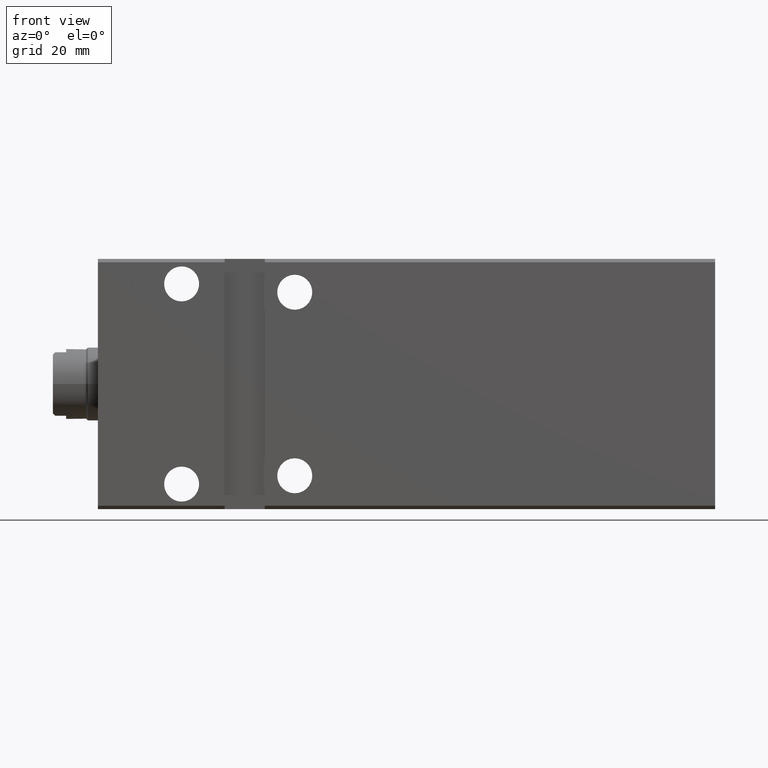
[diagram: clean part render]
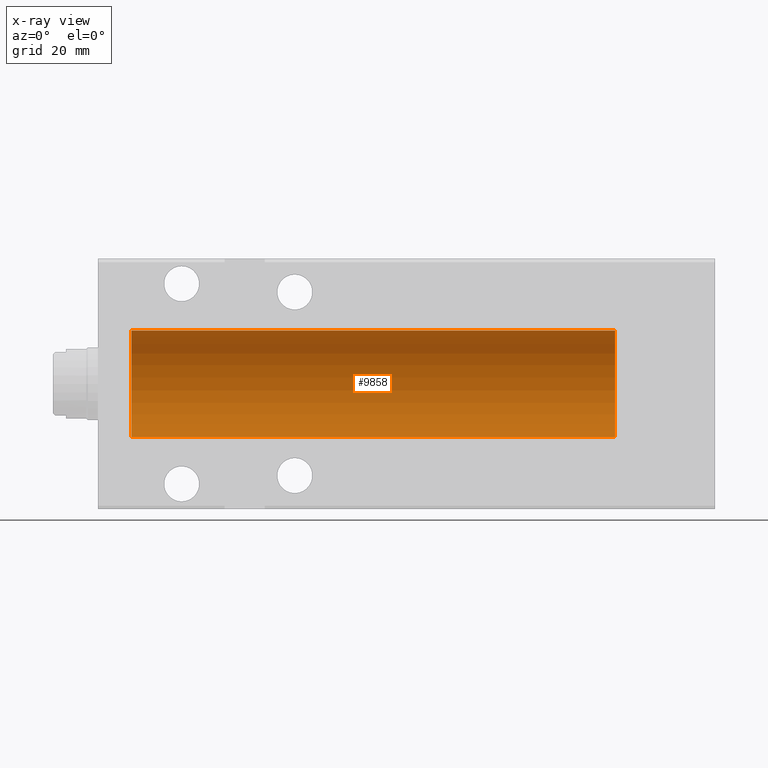
[diagram: x-ray — body ghosted, one internal face saturated and labeled with its STEP entity id]
A machine part, front view, then the same camera in x-ray: the body is ghosted and one INTERNAL B-rep face — a face not visible from any outside direction — is saturated and labeled: STEP entity #9858.
In plain terms, the highlighted cylindrical surface (partial cylindrical patch) has radius 16 mm, axis along (-1, -0, -0).
Its self-contained STEP definition (entity closure, byte-faithful):
#55 = CARTESIAN_POINT ( 'NONE',  ( 155.0000000000000000, 0.000000000000000000, 16.00000000000000000 ) ) ;
#685 = CARTESIAN_POINT ( 'NONE',  ( 155.0000000000000000, 1.959434878635765131E-15, -16.00000000000000000 ) ) ;
#870 = EDGE_LOOP ( 'NONE', ( #22957, #32368, #31303, #26472, #36669, #36803, #38138, #18195 ) ) ;
#1593 = VECTOR ( 'NONE', #3880, 1000.000000000000000 ) ;
#2568 = VECTOR ( 'NONE', #8310, 1000.000000000000000 ) ;
#3115 = DIRECTION ( 'NONE',  ( 0.000000000000000000, 0.000000000000000000, 1.000000000000000000 ) ) ;
#3556 = CARTESIAN_POINT ( 'NONE',  ( 26.57910603363460922, 1.786057109949259036, -15.89999999999998970 ) ) ;
#3660 = CARTESIAN_POINT ( 'NONE',  ( 19.03558494715525029, 0.6159808737045033844, -15.99099227927342959 ) ) ;
#3880 = DIRECTION ( 'NONE',  ( -1.000000000000000000, -0.000000000000000000, -0.000000000000000000 ) ) ;
#4363 = EDGE_CURVE ( 'NONE', #28526, #24926, #25852, .T. ) ;
#5281 = CARTESIAN_POINT ( 'NONE',  ( 155.0000000000000000, 0.000000000000000000, 0.000000000000000000 ) ) ;
#5842 = VECTOR ( 'NONE', #22069, 1000.000000000000000 ) ;
#6087 = EDGE_CURVE ( 'NONE', #14944, #33751, #12883, .T. ) ;
#6107 = EDGE_CURVE ( 'NONE', #8975, #37176, #11834, .T. ) ;
#6669 = DIRECTION ( 'NONE',  ( -1.000000000000000000, 0.000000000000000000, 0.000000000000000000 ) ) ;
#8310 = DIRECTION ( 'NONE',  ( -1.000000000000000000, -0.000000000000000000, -0.000000000000000000 ) ) ;
#8474 = DIRECTION ( 'NONE',  ( -1.000000000000000000, -0.000000000000000000, -0.000000000000000000 ) ) ;
#8975 = VERTEX_POINT ( 'NONE', #18488 ) ;
#9078 = CARTESIAN_POINT ( 'NONE',  ( 10.00000000000000000, 0.000000000000000000, 16.00000000000000000 ) ) ;
#9174 = CARTESIAN_POINT ( 'NONE',  ( 26.96356619788477360, 0.6204082509210441243, -15.99078302721733102 ) ) ;
#9570 = CARTESIAN_POINT ( 'NONE',  ( 26.57910603363460922, 1.786057109949259036, -15.89999999999998970 ) ) ;
#9858 = ADVANCED_FACE ( 'NONE', ( #35836 ), #26471, .F. ) ;
#10067 = CARTESIAN_POINT ( 'NONE',  ( 155.0000000000000000, 0.000000000000000000, 0.000000000000000000 ) ) ;
#10235 = CARTESIAN_POINT ( 'NONE',  ( 10.00000000000000000, 0.000000000000000000, 0.000000000000000000 ) ) ;
#10631 = CARTESIAN_POINT ( 'NONE',  ( 19.17775111251208386, 1.219193417833760451, -15.95634149554536485 ) ) ;
#11507 = CARTESIAN_POINT ( 'NONE',  ( 19.42089396636538723, 1.786057109949259036, -15.89999999999998970 ) ) ;
#11834 = CIRCLE ( 'NONE', #15018, 16.00000000000000000 ) ;
#11902 = CARTESIAN_POINT ( 'NONE',  ( 155.0000000000000000, 1.959434878635765131E-15, -16.00000000000000000 ) ) ;
#11934 = EDGE_CURVE ( 'NONE', #14944, #24926, #27130, .T. ) ;
#12883 = LINE ( 'NONE', #685, #1593 ) ;
#13805 = VERTEX_POINT ( 'NONE', #9078 ) ;
#14191 = CARTESIAN_POINT ( 'NONE',  ( 27.00000000000000000, 1.959432167375458166E-15, -16.00000000000000000 ) ) ;
#14944 = VERTEX_POINT ( 'NONE', #30587 ) ;
#15018 = AXIS2_PLACEMENT_3D ( 'NONE', #10067, #22260, #3115 ) ;
#15365 = CARTESIAN_POINT ( 'NONE',  ( 26.71770615202116161, 1.508314300261687002, -15.93119902641381991 ) ) ;
#16526 = B_SPLINE_CURVE_WITH_KNOTS ( 'NONE', 3,
 ( #9570, #15365, #24377, #9174, #33756, #18561 ),
 .UNSPECIFIED., .F., .F.,
 ( 4, 2, 4 ),
 ( 0.000000000000000000, 0.0009228726212815549935, 0.001845745242563109553 ),
 .UNSPECIFIED. ) ;
#16790 = AXIS2_PLACEMENT_3D ( 'NONE', #5281, #8474, #35645 ) ;
#18195 = ORIENTED_EDGE ( 'NONE', *, *, #33217, .T. ) ;
#18488 = CARTESIAN_POINT ( 'NONE',  ( 155.0000000000000000, 0.000000000000000000, 16.00000000000000000 ) ) ;
#18561 = CARTESIAN_POINT ( 'NONE',  ( 27.00000000000000000, 1.959432167375458166E-15, -16.00000000000000000 ) ) ;
#20707 = LINE ( 'NONE', #38473, #2568 ) ;
#22069 = DIRECTION ( 'NONE',  ( -1.000000000000000000, -0.000000000000000000, -0.000000000000000000 ) ) ;
#22260 = DIRECTION ( 'NONE',  ( -1.000000000000000000, 0.000000000000000000, 0.000000000000000000 ) ) ;
#22634 = DIRECTION ( 'NONE',  ( 0.000000000000000000, 0.000000000000000000, 1.000000000000000000 ) ) ;
#22826 = CARTESIAN_POINT ( 'NONE',  ( 19.28245879915401417, 1.508644848340497058, -15.93116189573794550 ) ) ;
#22957 = ORIENTED_EDGE ( 'NONE', *, *, #39520, .F. ) ;
#24377 = CARTESIAN_POINT ( 'NONE',  ( 26.82196254941095148, 1.219576022118253888, -15.95627408098855504 ) ) ;
#24926 = VERTEX_POINT ( 'NONE', #11507 ) ;
#25771 = VECTOR ( 'NONE', #27259, 1000.000000000000000 ) ;
#25824 = CARTESIAN_POINT ( 'NONE',  ( 19.00000000000000000, 1.959437589885413797E-15, -16.00000000000000000 ) ) ;
#25852 = LINE ( 'NONE', #29054, #5842 ) ;
#26471 = CYLINDRICAL_SURFACE ( 'NONE', #16790, 16.00000000000000000 ) ;
#26472 = ORIENTED_EDGE ( 'NONE', *, *, #37282, .T. ) ;
#27130 = B_SPLINE_CURVE_WITH_KNOTS ( 'NONE', 3,
 ( #25824, #37989, #3660, #10631, #22826, #28042 ),
 .UNSPECIFIED., .F., .F.,
 ( 4, 2, 4 ),
 ( 0.001845745242563113023, 0.002767447188281244030, 0.003689149133999374171 ),
 .UNSPECIFIED. ) ;
#27259 = DIRECTION ( 'NONE',  ( -1.000000000000000000, -0.000000000000000000, -0.000000000000000000 ) ) ;
#28042 = CARTESIAN_POINT ( 'NONE',  ( 19.42089396636538723, 1.786057109949259036, -15.89999999999998970 ) ) ;
#28526 = VERTEX_POINT ( 'NONE', #3556 ) ;
#29054 = CARTESIAN_POINT ( 'NONE',  ( 155.0000000000000000, 1.786057109949259036, -15.89999999999998970 ) ) ;
#30587 = CARTESIAN_POINT ( 'NONE',  ( 19.00000000000000000, 1.959437589885413797E-15, -16.00000000000000000 ) ) ;
#30829 = CIRCLE ( 'NONE', #35926, 16.00000000000000000 ) ;
#31303 = ORIENTED_EDGE ( 'NONE', *, *, #38976, .T. ) ;
#32368 = ORIENTED_EDGE ( 'NONE', *, *, #6107, .F. ) ;
#32821 = CARTESIAN_POINT ( 'NONE',  ( 10.00000000000000000, 1.959434878635765131E-15, -16.00000000000000000 ) ) ;
#33217 = EDGE_CURVE ( 'NONE', #28526, #37606, #16526, .T. ) ;
#33751 = VERTEX_POINT ( 'NONE', #32821 ) ;
#33756 = CARTESIAN_POINT ( 'NONE',  ( 26.99999999999999645, 0.3077040434552391068, -16.00000000000000355 ) ) ;
#35227 = LINE ( 'NONE', #55, #25771 ) ;
#35645 = DIRECTION ( 'NONE',  ( 0.000000000000000000, 0.000000000000000000, 1.000000000000000000 ) ) ;
#35836 = FACE_OUTER_BOUND ( 'NONE', #870, .T. ) ;
#35926 = AXIS2_PLACEMENT_3D ( 'NONE', #10235, #6669, #22634 ) ;
#36669 = ORIENTED_EDGE ( 'NONE', *, *, #6087, .F. ) ;
#36803 = ORIENTED_EDGE ( 'NONE', *, *, #11934, .T. ) ;
#37176 = VERTEX_POINT ( 'NONE', #11902 ) ;
#37282 = EDGE_CURVE ( 'NONE', #13805, #33751, #30829, .T. ) ;
#37606 = VERTEX_POINT ( 'NONE', #14191 ) ;
#37989 = CARTESIAN_POINT ( 'NONE',  ( 19.00000000000000000, 0.3073137169939992308, -16.00000000000000355 ) ) ;
#38138 = ORIENTED_EDGE ( 'NONE', *, *, #4363, .F. ) ;
#38473 = CARTESIAN_POINT ( 'NONE',  ( 155.0000000000000000, 1.959434878635765131E-15, -16.00000000000000000 ) ) ;
#38976 = EDGE_CURVE ( 'NONE', #8975, #13805, #35227, .T. ) ;
#39520 = EDGE_CURVE ( 'NONE', #37176, #37606, #20707, .T. ) ;